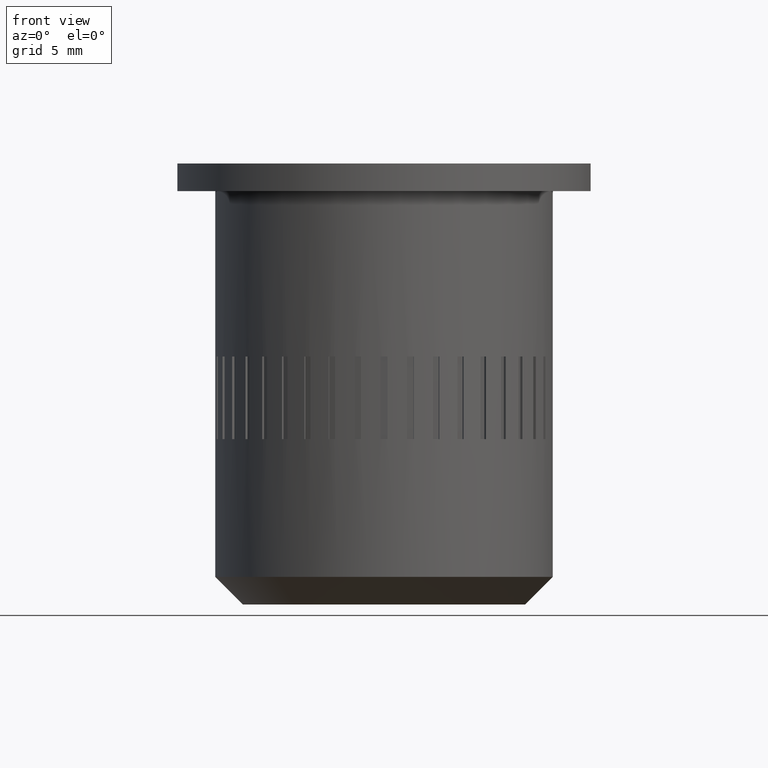
[diagram: clean part render]
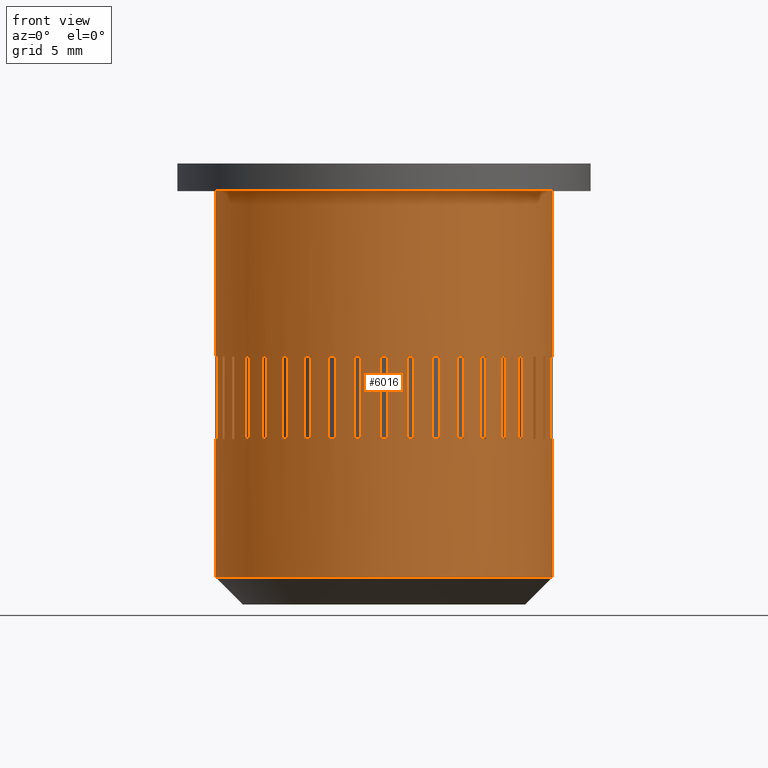
[diagram: same view with one face highlighted and labeled with its STEP entity id]
A machine part, front view. The second image highlights one B-rep face of the part: STEP entity #6016.
In plain terms, the highlighted cylindrical surface (partial cylindrical patch) has radius 12.25 mm, axis along (-0, -0, -1).
Its self-contained STEP definition (entity closure, byte-faithful):
#4 = EDGE_LOOP ( 'NONE', ( #2916, #2919, #2918, #2920 ) ) ;
#15 = EDGE_CURVE ( 'NONE', #330, #332, #5220, .T. ) ;
#28 = VECTOR ( 'NONE', #1402, 1000.000000000000000 ) ;
#56 = CIRCLE ( 'NONE', #2780, 12.25000000000000200 ) ;
#60 = LINE ( 'NONE', #1582, #61 ) ;
#61 = VECTOR ( 'NONE', #1583, 1000.000000000000000 ) ;
#65 = CIRCLE ( 'NONE', #2781, 12.25000000000000200 ) ;
#120 = EDGE_LOOP ( 'NONE', ( #3512, #3513, #3514, #3515 ) ) ;
#121 = EDGE_LOOP ( 'NONE', ( #3517, #3528, #3619, #3499 ) ) ;
#124 = VERTEX_POINT ( 'NONE', #5444 ) ;
#130 = VERTEX_POINT ( 'NONE', #5406 ) ;
#133 = VERTEX_POINT ( 'NONE', #5410 ) ;
#135 = VERTEX_POINT ( 'NONE', #2903 ) ;
#138 = VERTEX_POINT ( 'NONE', #2902 ) ;
#139 = VERTEX_POINT ( 'NONE', #2906 ) ;
#142 = VERTEX_POINT ( 'NONE', #2912 ) ;
#143 = VERTEX_POINT ( 'NONE', #2900 ) ;
#144 = VERTEX_POINT ( 'NONE', #2905 ) ;
#145 = VERTEX_POINT ( 'NONE', #2908 ) ;
#146 = VERTEX_POINT ( 'NONE', #2911 ) ;
#147 = VERTEX_POINT ( 'NONE', #2910 ) ;
#149 = VERTEX_POINT ( 'NONE', #2898 ) ;
#150 = VERTEX_POINT ( 'NONE', #2869 ) ;
#151 = VERTEX_POINT ( 'NONE', #2870 ) ;
#152 = VERTEX_POINT ( 'NONE', #2899 ) ;
#153 = VERTEX_POINT ( 'NONE', #2871 ) ;
#154 = VERTEX_POINT ( 'NONE', #2873 ) ;
#155 = VERTEX_POINT ( 'NONE', #2880 ) ;
#156 = VERTEX_POINT ( 'NONE', #2879 ) ;
#157 = VERTEX_POINT ( 'NONE', #2874 ) ;
#158 = VERTEX_POINT ( 'NONE', #2867 ) ;
#159 = VERTEX_POINT ( 'NONE', #2866 ) ;
#160 = VERTEX_POINT ( 'NONE', #2877 ) ;
#162 = VERTEX_POINT ( 'NONE', #2875 ) ;
#163 = VERTEX_POINT ( 'NONE', #2876 ) ;
#164 = VERTEX_POINT ( 'NONE', #2872 ) ;
#165 = VERTEX_POINT ( 'NONE', #2881 ) ;
#166 = VERTEX_POINT ( 'NONE', #2878 ) ;
#167 = VERTEX_POINT ( 'NONE', #2883 ) ;
#168 = VERTEX_POINT ( 'NONE', #2882 ) ;
#169 = VERTEX_POINT ( 'NONE', #2885 ) ;
#170 = VERTEX_POINT ( 'NONE', #2884 ) ;
#171 = VERTEX_POINT ( 'NONE', #2887 ) ;
#172 = VERTEX_POINT ( 'NONE', #2886 ) ;
#173 = VERTEX_POINT ( 'NONE', #2889 ) ;
#174 = VERTEX_POINT ( 'NONE', #2888 ) ;
#175 = VERTEX_POINT ( 'NONE', #2891 ) ;
#177 = VERTEX_POINT ( 'NONE', #2893 ) ;
#188 = VERTEX_POINT ( 'NONE', #2279 ) ;
#190 = VERTEX_POINT ( 'NONE', #2280 ) ;
#215 = VERTEX_POINT ( 'NONE', #2316 ) ;
#216 = VERTEX_POINT ( 'NONE', #2308 ) ;
#217 = VERTEX_POINT ( 'NONE', #2313 ) ;
#219 = VERTEX_POINT ( 'NONE', #2291 ) ;
#221 = VERTEX_POINT ( 'NONE', #2306 ) ;
#223 = VERTEX_POINT ( 'NONE', #2288 ) ;
#260 = VERTEX_POINT ( 'NONE', #1240 ) ;
#267 = VERTEX_POINT ( 'NONE', #1208 ) ;
#270 = VERTEX_POINT ( 'NONE', #1230 ) ;
#272 = VERTEX_POINT ( 'NONE', #5647 ) ;
#275 = VERTEX_POINT ( 'NONE', #5652 ) ;
#277 = VERTEX_POINT ( 'NONE', #5642 ) ;
#279 = VERTEX_POINT ( 'NONE', #5661 ) ;
#280 = VERTEX_POINT ( 'NONE', #5660 ) ;
#286 = VERTEX_POINT ( 'NONE', #5674 ) ;
#291 = VERTEX_POINT ( 'NONE', #5663 ) ;
#295 = VERTEX_POINT ( 'NONE', #5668 ) ;
#300 = VERTEX_POINT ( 'NONE', #5666 ) ;
#302 = VERTEX_POINT ( 'NONE', #5656 ) ;
#314 = VERTEX_POINT ( 'NONE', #2960 ) ;
#328 = VERTEX_POINT ( 'NONE', #2970 ) ;
#330 = VERTEX_POINT ( 'NONE', #2969 ) ;
#332 = VERTEX_POINT ( 'NONE', #1361 ) ;
#333 = VERTEX_POINT ( 'NONE', #1360 ) ;
#335 = VERTEX_POINT ( 'NONE', #1351 ) ;
#337 = VERTEX_POINT ( 'NONE', #1349 ) ;
#342 = VERTEX_POINT ( 'NONE', #1348 ) ;
#345 = VERTEX_POINT ( 'NONE', #1343 ) ;
#346 = VERTEX_POINT ( 'NONE', #1354 ) ;
#351 = VERTEX_POINT ( 'NONE', #1345 ) ;
#352 = VERTEX_POINT ( 'NONE', #2948 ) ;
#353 = VERTEX_POINT ( 'NONE', #2947 ) ;
#354 = VERTEX_POINT ( 'NONE', #2946 ) ;
#358 = VERTEX_POINT ( 'NONE', #2937 ) ;
#360 = VERTEX_POINT ( 'NONE', #2936 ) ;
#362 = VERTEX_POINT ( 'NONE', #2935 ) ;
#369 = VERTEX_POINT ( 'NONE', #1061 ) ;
#371 = VERTEX_POINT ( 'NONE', #1063 ) ;
#373 = VERTEX_POINT ( 'NONE', #1065 ) ;
#381 = VERTEX_POINT ( 'NONE', #1073 ) ;
#383 = VERTEX_POINT ( 'NONE', #1075 ) ;
#386 = VERTEX_POINT ( 'NONE', #1078 ) ;
#388 = VERTEX_POINT ( 'NONE', #1080 ) ;
#389 = VERTEX_POINT ( 'NONE', #1081 ) ;
#392 = VERTEX_POINT ( 'NONE', #1084 ) ;
#396 = VERTEX_POINT ( 'NONE', #1088 ) ;
#398 = VERTEX_POINT ( 'NONE', #1090 ) ;
#412 = EDGE_LOOP ( 'NONE', ( #3623, #2924, #3641, #3635 ) ) ;
#413 = EDGE_LOOP ( 'NONE', ( #3639, #3651, #3649, #3655 ) ) ;
#440 = CARTESIAN_POINT ( 'NONE',  ( 8.837030733141098400, -8.483477342547672600, 12.00000000000000200 ) ) ;
#441 = DIRECTION ( 'NONE',  ( -0.0000000000000000000, -0.0000000000000000000, 1.000000000000000000 ) ) ;
#446 = CARTESIAN_POINT ( 'NONE',  ( -5.782976993212170800, -10.79905908382664300, 12.00000000000000200 ) ) ;
#447 = DIRECTION ( 'NONE',  ( -0.0000000000000000000, -0.0000000000000000000, 1.000000000000000000 ) ) ;
#452 = CARTESIAN_POINT ( 'NONE',  ( 12.13577091303171700, -1.669001002520183800, 12.00000000000000200 ) ) ;
#453 = DIRECTION ( 'NONE',  ( -0.0000000000000000000, -0.0000000000000000000, 1.000000000000000000 ) ) ;
#456 = CARTESIAN_POINT ( 'NONE',  ( 0.0000000000000000000, 0.0000000000000000000, 12.00000000000000200 ) ) ;
#457 = DIRECTION ( 'NONE',  ( 0.0000000000000000000, 0.0000000000000000000, 1.000000000000000000 ) ) ;
#458 = DIRECTION ( 'NONE',  ( -0.4539904997395510800, 0.8910065241883656800, 0.0000000000000000000 ) ) ;
#487 = CARTESIAN_POINT ( 'NONE',  ( -12.25000000000000000, 0.0000000000000000000, 30.00000000000000000 ) ) ;
#488 = DIRECTION ( 'NONE',  ( -0.0000000000000000000, -0.0000000000000000000, -1.000000000000000000 ) ) ;
#500 = CARTESIAN_POINT ( 'NONE',  ( -6.996615483654383500, -10.05534046036670900, 12.00000000000000200 ) ) ;
#501 = DIRECTION ( 'NONE',  ( -0.0000000000000000000, -0.0000000000000000000, 1.000000000000000000 ) ) ;
#502 = CARTESIAN_POINT ( 'NONE',  ( 0.2500000000000863200, -12.24744871391588900, 12.00000000000000200 ) ) ;
#503 = DIRECTION ( 'NONE',  ( -0.0000000000000000000, -0.0000000000000000000, 1.000000000000000000 ) ) ;
#506 = CARTESIAN_POINT ( 'NONE',  ( 0.0000000000000000000, 0.0000000000000000000, 12.00000000000000200 ) ) ;
#507 = DIRECTION ( 'NONE',  ( 0.0000000000000000000, 0.0000000000000000000, 1.000000000000000000 ) ) ;
#508 = DIRECTION ( 'NONE',  ( -0.3090169943749382900, -0.9510565162951565300, 0.0000000000000000000 ) ) ;
#517 = CARTESIAN_POINT ( 'NONE',  ( -4.022433919409316200, -11.57076165876669500, 12.00000000000000200 ) ) ;
#518 = DIRECTION ( 'NONE',  ( -0.0000000000000000000, -0.0000000000000000000, 1.000000000000000000 ) ) ;
#529 = CARTESIAN_POINT ( 'NONE',  ( 0.0000000000000000000, 0.0000000000000000000, 18.00000000000000400 ) ) ;
#530 = DIRECTION ( 'NONE',  ( 0.0000000000000000000, 0.0000000000000000000, 1.000000000000000000 ) ) ;
#531 = DIRECTION ( 'NONE',  ( -0.5877852522924652500, -0.8090169943749530000, 0.0000000000000000000 ) ) ;
#535 = CARTESIAN_POINT ( 'NONE',  ( 0.0000000000000000000, 0.0000000000000000000, 18.00000000000000400 ) ) ;
#536 = DIRECTION ( 'NONE',  ( 0.0000000000000000000, 0.0000000000000000000, 1.000000000000000000 ) ) ;
#537 = DIRECTION ( 'NONE',  ( -3.491481338843133700E-015, 1.000000000000000000, 0.0000000000000000000 ) ) ;
#540 = CARTESIAN_POINT ( 'NONE',  ( -3.546905661261738000, -11.72527015595416500, 12.00000000000000200 ) ) ;
#541 = DIRECTION ( 'NONE',  ( -0.0000000000000000000, -0.0000000000000000000, 1.000000000000000000 ) ) ;
#556 = EDGE_LOOP ( 'NONE', ( #4003, #4004, #4036, #3997 ) ) ;
#557 = EDGE_LOOP ( 'NONE', ( #4050, #4047, #4045, #4046 ) ) ;
#558 = EDGE_LOOP ( 'NONE', ( #4051, #4052, #4049, #4048 ) ) ;
#559 = EDGE_LOOP ( 'NONE', ( #4056, #4054, #4055, #4053 ) ) ;
#805 = CARTESIAN_POINT ( 'NONE',  ( 0.0000000000000000000, 0.0000000000000000000, 30.00000000000000000 ) ) ;
#806 = DIRECTION ( 'NONE',  ( -0.0000000000000000000, -0.0000000000000000000, -1.000000000000000000 ) ) ;
#807 = DIRECTION ( 'NONE',  ( -1.000000000000000000, 0.0000000000000000000, 0.0000000000000000000 ) ) ;
#893 = EDGE_CURVE ( 'NONE', #272, #342, #5233, .T. ) ;
#910 = EDGE_CURVE ( 'NONE', #157, #156, #5265, .T. ) ;
#927 = EDGE_CURVE ( 'NONE', #398, #396, #5289, .T. ) ;
#928 = EDGE_CURVE ( 'NONE', #260, #354, #5288, .T. ) ;
#929 = EDGE_CURVE ( 'NONE', #383, #388, #4829, .T. ) ;
#932 = EDGE_CURVE ( 'NONE', #163, #223, #4832, .T. ) ;
#934 = EDGE_LOOP ( 'NONE', ( #3633, #4006, #3999, #4057 ) ) ;
#938 = FACE_BOUND ( 'NONE', #2178, .T. ) ;
#939 = FACE_BOUND ( 'NONE', #934, .T. ) ;
#940 = FACE_BOUND ( 'NONE', #559, .T. ) ;
#941 = FACE_BOUND ( 'NONE', #558, .T. ) ;
#942 = FACE_BOUND ( 'NONE', #557, .T. ) ;
#943 = FACE_BOUND ( 'NONE', #2176, .T. ) ;
#944 = FACE_BOUND ( 'NONE', #556, .T. ) ;
#945 = CYLINDRICAL_SURFACE ( 'NONE', #3317, 12.25000000000000000 ) ;
#1061 = CARTESIAN_POINT ( 'NONE',  ( -0.2499999999999137100, -12.24744871391589200, 12.00000000000000200 ) ) ;
#1063 = CARTESIAN_POINT ( 'NONE',  ( 11.57076165876670800, -4.022433919409280600, 12.00000000000000200 ) ) ;
#1065 = CARTESIAN_POINT ( 'NONE',  ( 11.72527015595417800, -3.546905661261702000, 12.00000000000000200 ) ) ;
#1073 = CARTESIAN_POINT ( 'NONE',  ( -10.05534046036663300, -6.996615483654489200, 12.00000000000000200 ) ) ;
#1075 = CARTESIAN_POINT ( 'NONE',  ( 3.546905661261908500, -11.72527015595411500, 12.00000000000000200 ) ) ;
#1078 = CARTESIAN_POINT ( 'NONE',  ( 3.546905661261908500, -11.72527015595411500, 18.00000000000000400 ) ) ;
#1080 = CARTESIAN_POINT ( 'NONE',  ( 4.022433919409484000, -11.57076165876663900, 12.00000000000000200 ) ) ;
#1081 = CARTESIAN_POINT ( 'NONE',  ( -12.25000000000000000, 0.0000000000000000000, 12.00000000000000200 ) ) ;
#1084 = CARTESIAN_POINT ( 'NONE',  ( 4.022433919409483100, -11.57076165876663700, 18.00000000000000400 ) ) ;
#1088 = CARTESIAN_POINT ( 'NONE',  ( 10.05534046036673600, -6.996615483654343500, 12.00000000000000200 ) ) ;
#1090 = CARTESIAN_POINT ( 'NONE',  ( 9.761447834220502900, -7.401123980841820300, 12.00000000000000200 ) ) ;
#1102 = CARTESIAN_POINT ( 'NONE',  ( 0.0000000000000000000, 0.0000000000000000000, 12.00000000000000200 ) ) ;
#1103 = DIRECTION ( 'NONE',  ( 0.0000000000000000000, 0.0000000000000000000, 1.000000000000000000 ) ) ;
#1104 = DIRECTION ( 'NONE',  ( 1.047444401652940000E-014, -1.000000000000000000, 0.0000000000000000000 ) ) ;
#1138 = CARTESIAN_POINT ( 'NONE',  ( 0.0000000000000000000, 0.0000000000000000000, 12.00000000000000200 ) ) ;
#1139 = DIRECTION ( 'NONE',  ( 0.0000000000000000000, 0.0000000000000000000, 1.000000000000000000 ) ) ;
#1140 = DIRECTION ( 'NONE',  ( -0.3090169943749515600, 0.9510565162951522000, 0.0000000000000000000 ) ) ;
#1166 = CARTESIAN_POINT ( 'NONE',  ( 0.0000000000000000000, 0.0000000000000000000, 12.00000000000000200 ) ) ;
#1167 = DIRECTION ( 'NONE',  ( 0.0000000000000000000, 0.0000000000000000000, 1.000000000000000000 ) ) ;
#1168 = DIRECTION ( 'NONE',  ( -0.5877852522924652500, -0.8090169943749530000, 0.0000000000000000000 ) ) ;
#1169 = CARTESIAN_POINT ( 'NONE',  ( 12.25000000000000000, 1.500192328955507700E-015, 30.00000000000000000 ) ) ;
#1170 = DIRECTION ( 'NONE',  ( -0.0000000000000000000, -0.0000000000000000000, -1.000000000000000000 ) ) ;
#1171 = CARTESIAN_POINT ( 'NONE',  ( 0.0000000000000000000, 0.0000000000000000000, 12.00000000000000200 ) ) ;
#1172 = DIRECTION ( 'NONE',  ( 0.0000000000000000000, 0.0000000000000000000, 1.000000000000000000 ) ) ;
#1173 = DIRECTION ( 'NONE',  ( -0.9510565162951510900, -0.3090169943749548300, 0.0000000000000000000 ) ) ;
#1180 = CARTESIAN_POINT ( 'NONE',  ( 0.0000000000000000000, 0.0000000000000000000, 1.999999999999998200 ) ) ;
#1181 = DIRECTION ( 'NONE',  ( -0.0000000000000000000, -0.0000000000000000000, 1.000000000000000000 ) ) ;
#1182 = DIRECTION ( 'NONE',  ( 1.000000000000000000, 0.0000000000000000000, 0.0000000000000000000 ) ) ;
#1186 = CARTESIAN_POINT ( 'NONE',  ( 2.162845172817970500, -12.05755368051156600, 12.00000000000000200 ) ) ;
#1187 = DIRECTION ( 'NONE',  ( -0.0000000000000000000, -0.0000000000000000000, 1.000000000000000000 ) ) ;
#1188 = CARTESIAN_POINT ( 'NONE',  ( 0.0000000000000000000, 0.0000000000000000000, 12.00000000000000200 ) ) ;
#1189 = DIRECTION ( 'NONE',  ( 0.0000000000000000000, 0.0000000000000000000, 1.000000000000000000 ) ) ;
#1190 = DIRECTION ( 'NONE',  ( -0.1564344650402347500, 0.9876883405951371000, 0.0000000000000000000 ) ) ;
#1193 = CARTESIAN_POINT ( 'NONE',  ( 5.337473731118144800, -11.02605433369633700, 12.00000000000000200 ) ) ;
#1194 = DIRECTION ( 'NONE',  ( -0.0000000000000000000, -0.0000000000000000000, 1.000000000000000000 ) ) ;
#1195 = CARTESIAN_POINT ( 'NONE',  ( 0.0000000000000000000, 0.0000000000000000000, 18.00000000000000400 ) ) ;
#1196 = DIRECTION ( 'NONE',  ( 0.0000000000000000000, 0.0000000000000000000, 1.000000000000000000 ) ) ;
#1197 = DIRECTION ( 'NONE',  ( -0.7071067811865413600, -0.7071067811865536800, 0.0000000000000000000 ) ) ;
#1202 = CARTESIAN_POINT ( 'NONE',  ( 0.0000000000000000000, 0.0000000000000000000, 18.00000000000000400 ) ) ;
#1203 = DIRECTION ( 'NONE',  ( 0.0000000000000000000, 0.0000000000000000000, 1.000000000000000000 ) ) ;
#1204 = DIRECTION ( 'NONE',  ( -0.8910065241883641200, -0.4539904997395541300, 0.0000000000000000000 ) ) ;
#1208 = CARTESIAN_POINT ( 'NONE',  ( -12.25000000000000000, 0.0000000000000000000, 30.00000000000000000 ) ) ;
#1210 = CARTESIAN_POINT ( 'NONE',  ( 12.05755368051160800, -2.162845172817753800, 12.00000000000000200 ) ) ;
#1212 = DIRECTION ( 'NONE',  ( -0.0000000000000000000, -0.0000000000000000000, 1.000000000000000000 ) ) ;
#1230 = CARTESIAN_POINT ( 'NONE',  ( -12.24744871391588900, -0.2500000000000434700, 18.00000000000000400 ) ) ;
#1240 = CARTESIAN_POINT ( 'NONE',  ( 12.25000000000000000, 1.500192328955507700E-015, 30.00000000000000000 ) ) ;
#1262 = EDGE_LOOP ( 'NONE', ( #3504, #3505, #3617, #3621 ) ) ;
#1264 = EDGE_CURVE ( 'NONE', #145, #162, #4833, .T. ) ;
#1265 = EDGE_CURVE ( 'NONE', #168, #160, #4837, .T. ) ;
#1267 = EDGE_CURVE ( 'NONE', #190, #153, #4839, .T. ) ;
#1268 = EDGE_CURVE ( 'NONE', #149, #171, #4842, .T. ) ;
#1271 = EDGE_CURVE ( 'NONE', #153, #150, #4847, .T. ) ;
#1273 = EDGE_CURVE ( 'NONE', #174, #164, #4849, .T. ) ;
#1286 = EDGE_CURVE ( 'NONE', #142, #175, #4874, .T. ) ;
#1290 = EDGE_CURVE ( 'NONE', #215, #216, #4883, .T. ) ;
#1294 = EDGE_CURVE ( 'NONE', #170, #173, #4890, .T. ) ;
#1296 = EDGE_CURVE ( 'NONE', #156, #158, #4892, .T. ) ;
#1297 = EDGE_CURVE ( 'NONE', #138, #139, #4894, .T. ) ;
#1298 = EDGE_CURVE ( 'NONE', #177, #145, #4896, .T. ) ;
#1302 = EDGE_CURVE ( 'NONE', #190, #152, #4903, .T. ) ;
#1316 = EDGE_CURVE ( 'NONE', #188, #219, #4929, .T. ) ;
#1323 = EDGE_CURVE ( 'NONE', #215, #221, #4941, .T. ) ;
#1329 = EDGE_CURVE ( 'NONE', #168, #166, #4953, .T. ) ;
#1334 = EDGE_CURVE ( 'NONE', #216, #217, #4961, .T. ) ;
#1343 = CARTESIAN_POINT ( 'NONE',  ( -9.761447834220394500, -7.401123980841961500, 12.00000000000000200 ) ) ;
#1345 = CARTESIAN_POINT ( 'NONE',  ( -7.401123980841859400, -9.761447834220474500, 18.00000000000000400 ) ) ;
#1348 = CARTESIAN_POINT ( 'NONE',  ( 12.25000000000000000, 1.500192328955507700E-015, 12.00000000000000200 ) ) ;
#1349 = CARTESIAN_POINT ( 'NONE',  ( -4.022433919409316200, -11.57076165876669500, 18.00000000000000400 ) ) ;
#1351 = CARTESIAN_POINT ( 'NONE',  ( 6.996615483654530000, -10.05534046036660500, 12.00000000000000200 ) ) ;
#1354 = CARTESIAN_POINT ( 'NONE',  ( -0.2499999999999137100, -12.24744871391589200, 18.00000000000000400 ) ) ;
#1360 = CARTESIAN_POINT ( 'NONE',  ( 9.761447834220502900, -7.401123980841820300, 18.00000000000000400 ) ) ;
#1361 = CARTESIAN_POINT ( 'NONE',  ( 7.401123980842001500, -9.761447834220366100, 18.00000000000000400 ) ) ;
#1364 = EDGE_LOOP ( 'NONE', ( #3631, #3629, #3627, #3625 ) ) ;
#1384 = CARTESIAN_POINT ( 'NONE',  ( 0.0000000000000000000, 0.0000000000000000000, 18.00000000000000400 ) ) ;
#1385 = DIRECTION ( 'NONE',  ( 0.0000000000000000000, 0.0000000000000000000, 1.000000000000000000 ) ) ;
#1386 = DIRECTION ( 'NONE',  ( -0.4539904997395382000, -0.8910065241883722300, 0.0000000000000000000 ) ) ;
#1389 = CARTESIAN_POINT ( 'NONE',  ( 11.02605433369643400, -5.337473731117945900, 12.00000000000000200 ) ) ;
#1390 = DIRECTION ( 'NONE',  ( -0.0000000000000000000, -0.0000000000000000000, 1.000000000000000000 ) ) ;
#1391 = CARTESIAN_POINT ( 'NONE',  ( -11.02605433369635600, -5.337473731118106600, 12.00000000000000200 ) ) ;
#1392 = DIRECTION ( 'NONE',  ( -0.0000000000000000000, -0.0000000000000000000, 1.000000000000000000 ) ) ;
#1401 = CARTESIAN_POINT ( 'NONE',  ( -5.337473731117985000, -11.02605433369641500, 12.00000000000000200 ) ) ;
#1402 = DIRECTION ( 'NONE',  ( -0.0000000000000000000, -0.0000000000000000000, 1.000000000000000000 ) ) ;
#1429 = CARTESIAN_POINT ( 'NONE',  ( 0.0000000000000000000, 0.0000000000000000000, 18.00000000000000400 ) ) ;
#1430 = DIRECTION ( 'NONE',  ( 0.0000000000000000000, 0.0000000000000000000, 1.000000000000000000 ) ) ;
#1431 = DIRECTION ( 'NONE',  ( -0.9876883405951387700, 0.1564344650402244000, 0.0000000000000000000 ) ) ;
#1437 = CARTESIAN_POINT ( 'NONE',  ( 0.0000000000000000000, 0.0000000000000000000, 12.00000000000000200 ) ) ;
#1438 = DIRECTION ( 'NONE',  ( 0.0000000000000000000, 0.0000000000000000000, 1.000000000000000000 ) ) ;
#1439 = DIRECTION ( 'NONE',  ( -0.7071067811865413600, -0.7071067811865536800, 0.0000000000000000000 ) ) ;
#1442 = CARTESIAN_POINT ( 'NONE',  ( 1.669001002520402300, -12.13577091303168500, 12.00000000000000200 ) ) ;
#1443 = DIRECTION ( 'NONE',  ( -0.0000000000000000000, -0.0000000000000000000, 1.000000000000000000 ) ) ;
#1476 = CARTESIAN_POINT ( 'NONE',  ( 0.0000000000000000000, 0.0000000000000000000, 18.00000000000000400 ) ) ;
#1477 = DIRECTION ( 'NONE',  ( 0.0000000000000000000, 0.0000000000000000000, 1.000000000000000000 ) ) ;
#1478 = DIRECTION ( 'NONE',  ( -0.1564344650402347500, 0.9876883405951371000, 0.0000000000000000000 ) ) ;
#1515 = CARTESIAN_POINT ( 'NONE',  ( -12.05755368051157500, -2.162845172817928300, 12.00000000000000200 ) ) ;
#1516 = DIRECTION ( 'NONE',  ( -0.0000000000000000000, -0.0000000000000000000, 1.000000000000000000 ) ) ;
#1529 = CARTESIAN_POINT ( 'NONE',  ( 0.0000000000000000000, 0.0000000000000000000, 12.00000000000000200 ) ) ;
#1530 = DIRECTION ( 'NONE',  ( 0.0000000000000000000, 0.0000000000000000000, 1.000000000000000000 ) ) ;
#1531 = DIRECTION ( 'NONE',  ( -0.1564344650402205200, -0.9876883405951394400, 0.0000000000000000000 ) ) ;
#1541 = CARTESIAN_POINT ( 'NONE',  ( 0.0000000000000000000, 0.0000000000000000000, 12.00000000000000200 ) ) ;
#1542 = DIRECTION ( 'NONE',  ( 0.0000000000000000000, 0.0000000000000000000, 1.000000000000000000 ) ) ;
#1543 = DIRECTION ( 'NONE',  ( -0.9876883405951387700, 0.1564344650402244000, 0.0000000000000000000 ) ) ;
#1582 = CARTESIAN_POINT ( 'NONE',  ( -11.72527015595413100, -3.546905661261868100, 12.00000000000000200 ) ) ;
#1583 = DIRECTION ( 'NONE',  ( -0.0000000000000000000, -0.0000000000000000000, 1.000000000000000000 ) ) ;
#1586 = CARTESIAN_POINT ( 'NONE',  ( 0.0000000000000000000, 0.0000000000000000000, 18.00000000000000400 ) ) ;
#1587 = DIRECTION ( 'NONE',  ( 0.0000000000000000000, 0.0000000000000000000, 1.000000000000000000 ) ) ;
#1588 = DIRECTION ( 'NONE',  ( -0.1564344650402205200, -0.9876883405951394400, 0.0000000000000000000 ) ) ;
#2012 = CIRCLE ( 'NONE', #2776, 12.25000000000000200 ) ;
#2021 = CIRCLE ( 'NONE', #2778, 12.25000000000000200 ) ;
#2076 = CIRCLE ( 'NONE', #2779, 12.25000000000000200 ) ;
#2078 = LINE ( 'NONE', #1389, #2079 ) ;
#2079 = VECTOR ( 'NONE', #1390, 1000.000000000000000 ) ;
#2080 = LINE ( 'NONE', #1391, #2081 ) ;
#2081 = VECTOR ( 'NONE', #1392, 1000.000000000000000 ) ;
#2090 = LINE ( 'NONE', #1401, #28 ) ;
#2092 = LINE ( 'NONE', #6123, #2093 ) ;
#2093 = VECTOR ( 'NONE', #6124, 1000.000000000000000 ) ;
#2112 = CIRCLE ( 'NONE', #2772, 12.25000000000000000 ) ;
#2114 = LINE ( 'NONE', #1442, #2115 ) ;
#2115 = VECTOR ( 'NONE', #1443, 1000.000000000000000 ) ;
#2149 = CIRCLE ( 'NONE', #2773, 12.25000000000000000 ) ;
#2174 = EDGE_LOOP ( 'NONE', ( #3508, #3507, #3506, #4002, #4000, #3998, #3996, #3994, #3992, #3990, #3988, #3986 ) ) ;
#2175 = EDGE_LOOP ( 'NONE', ( #2922, #2921, #2923, #2929 ) ) ;
#2176 = EDGE_LOOP ( 'NONE', ( #4034, #4040, #4038, #4001 ) ) ;
#2177 = EDGE_LOOP ( 'NONE', ( #3984, #3509, #3510, #3511 ) ) ;
#2178 = EDGE_LOOP ( 'NONE', ( #2926, #3645, #3643, #2925 ) ) ;
#2190 = EDGE_CURVE ( 'NONE', #169, #171, #4713, .T. ) ;
#2193 = EDGE_CURVE ( 'NONE', #188, #147, #4719, .T. ) ;
#2196 = EDGE_CURVE ( 'NONE', #165, #167, #4725, .T. ) ;
#2198 = EDGE_CURVE ( 'NONE', #130, #144, #4730, .T. ) ;
#2212 = CARTESIAN_POINT ( 'NONE',  ( 5.782976993212327200, -10.79905908382656000, 12.00000000000000200 ) ) ;
#2213 = DIRECTION ( 'NONE',  ( -0.0000000000000000000, -0.0000000000000000000, 1.000000000000000000 ) ) ;
#2226 = CARTESIAN_POINT ( 'NONE',  ( 8.483477342547828900, -8.837030733140949200, 12.00000000000000200 ) ) ;
#2227 = DIRECTION ( 'NONE',  ( -0.0000000000000000000, -0.0000000000000000000, 1.000000000000000000 ) ) ;
#2259 = CARTESIAN_POINT ( 'NONE',  ( 10.79905908382666400, -5.782976993212132700, 12.00000000000000200 ) ) ;
#2260 = DIRECTION ( 'NONE',  ( -0.0000000000000000000, -0.0000000000000000000, 1.000000000000000000 ) ) ;
#2279 = CARTESIAN_POINT ( 'NONE',  ( -5.782976993212170800, -10.79905908382664300, 12.00000000000000200 ) ) ;
#2280 = CARTESIAN_POINT ( 'NONE',  ( 5.337473731118144800, -11.02605433369633700, 12.00000000000000200 ) ) ;
#2288 = CARTESIAN_POINT ( 'NONE',  ( 12.25000000000000000, 1.500192328955507700E-015, 1.999999999999998200 ) ) ;
#2291 = CARTESIAN_POINT ( 'NONE',  ( -5.337473731117985000, -11.02605433369641500, 12.00000000000000200 ) ) ;
#2306 = CARTESIAN_POINT ( 'NONE',  ( -8.837030733140979400, -8.483477342547795200, 18.00000000000000400 ) ) ;
#2308 = CARTESIAN_POINT ( 'NONE',  ( -8.483477342547702800, -8.837030733141068200, 12.00000000000000200 ) ) ;
#2313 = CARTESIAN_POINT ( 'NONE',  ( -8.483477342547702800, -8.837030733141068200, 18.00000000000000400 ) ) ;
#2316 = CARTESIAN_POINT ( 'NONE',  ( -8.837030733140979400, -8.483477342547795200, 12.00000000000000200 ) ) ;
#2402 = LINE ( 'NONE', #5751, #2404 ) ;
#2403 = CIRCLE ( 'NONE', #2745, 12.25000000000000000 ) ;
#2404 = VECTOR ( 'NONE', #5752, 1000.000000000000000 ) ;
#2408 = LINE ( 'NONE', #5761, #2410 ) ;
#2409 = CIRCLE ( 'NONE', #2747, 12.25000000000000200 ) ;
#2410 = VECTOR ( 'NONE', #5762, 1000.000000000000000 ) ;
#2411 = CIRCLE ( 'NONE', #2748, 12.25000000000000200 ) ;
#2413 = CIRCLE ( 'NONE', #2749, 12.25000000000000000 ) ;
#2415 = LINE ( 'NONE', #5771, #2416 ) ;
#2416 = VECTOR ( 'NONE', #5772, 1000.000000000000000 ) ;
#2419 = LINE ( 'NONE', #5775, #2420 ) ;
#2420 = VECTOR ( 'NONE', #5776, 1000.000000000000000 ) ;
#2421 = LINE ( 'NONE', #5780, #2423 ) ;
#2423 = VECTOR ( 'NONE', #5781, 1000.000000000000000 ) ;
#2424 = CIRCLE ( 'NONE', #2751, 12.25000000000000000 ) ;
#2425 = CIRCLE ( 'NONE', #2752, 12.25000000000000000 ) ;
#2427 = LINE ( 'NONE', #5794, #2429 ) ;
#2429 = VECTOR ( 'NONE', #5795, 1000.000000000000000 ) ;
#2430 = LINE ( 'NONE', #5796, #2431 ) ;
#2431 = VECTOR ( 'NONE', #5797, 1000.000000000000000 ) ;
#2432 = LINE ( 'NONE', #5801, #2434 ) ;
#2434 = VECTOR ( 'NONE', #5802, 1000.000000000000000 ) ;
#2435 = LINE ( 'NONE', #5806, #2437 ) ;
#2437 = VECTOR ( 'NONE', #5807, 1000.000000000000000 ) ;
#2572 = EDGE_CURVE ( 'NONE', #389, #163, #4749, .T. ) ;
#2577 = EDGE_CURVE ( 'NONE', #360, #295, #4756, .T. ) ;
#2578 = EDGE_CURVE ( 'NONE', #300, #286, #4759, .T. ) ;
#2580 = EDGE_CURVE ( 'NONE', #371, #373, #4764, .T. ) ;
#2584 = EDGE_CURVE ( 'NONE', #352, #337, #4767, .T. ) ;
#2589 = EDGE_CURVE ( 'NONE', #333, #328, #4776, .T. ) ;
#2591 = EDGE_CURVE ( 'NONE', #275, #270, #4779, .T. ) ;
#2593 = EDGE_CURVE ( 'NONE', #302, #358, #4781, .T. ) ;
#2602 = EDGE_CURVE ( 'NONE', #291, #360, #4795, .T. ) ;
#2606 = EDGE_CURVE ( 'NONE', #362, #353, #4800, .T. ) ;
#2609 = EDGE_CURVE ( 'NONE', #371, #362, #4804, .T. ) ;
#2611 = EDGE_CURVE ( 'NONE', #373, #353, #4806, .T. ) ;
#2613 = EDGE_CURVE ( 'NONE', #351, #295, #4811, .T. ) ;
#2617 = EDGE_CURVE ( 'NONE', #346, #286, #4817, .T. ) ;
#2618 = EDGE_CURVE ( 'NONE', #388, #392, #4816, .T. ) ;
#2619 = EDGE_CURVE ( 'NONE', #335, #330, #4820, .T. ) ;
#2620 = EDGE_CURVE ( 'NONE', #267, #275, #4819, .T. ) ;
#2622 = EDGE_CURVE ( 'NONE', #389, #277, #4823, .T. ) ;
#2623 = EDGE_CURVE ( 'NONE', #369, #300, #4824, .T. ) ;
#2626 = EDGE_CURVE ( 'NONE', #267, #260, #2403, .T. ) ;
#2627 = EDGE_CURVE ( 'NONE', #272, #279, #2402, .T. ) ;
#2630 = EDGE_CURVE ( 'NONE', #352, #302, #2409, .T. ) ;
#2631 = EDGE_CURVE ( 'NONE', #291, #351, #2408, .T. ) ;
#2632 = EDGE_CURVE ( 'NONE', #337, #358, #2411, .T. ) ;
#2633 = EDGE_CURVE ( 'NONE', #279, #354, #2413, .T. ) ;
#2635 = EDGE_CURVE ( 'NONE', #277, #270, #2415, .T. ) ;
#2637 = EDGE_CURVE ( 'NONE', #335, #314, #2419, .T. ) ;
#2639 = EDGE_CURVE ( 'NONE', #369, #346, #2421, .T. ) ;
#2640 = EDGE_CURVE ( 'NONE', #381, #345, #2424, .T. ) ;
#2641 = EDGE_CURVE ( 'NONE', #280, #154, #2425, .T. ) ;
#2644 = EDGE_CURVE ( 'NONE', #398, #333, #2427, .T. ) ;
#2645 = EDGE_CURVE ( 'NONE', #396, #328, #2430, .T. ) ;
#2647 = EDGE_CURVE ( 'NONE', #345, #154, #2432, .T. ) ;
#2649 = EDGE_CURVE ( 'NONE', #381, #280, #2435, .T. ) ;
#2688 = AXIS2_PLACEMENT_3D ( 'NONE', #1102, #1103, #1104 ) ;
#2690 = AXIS2_PLACEMENT_3D ( 'NONE', #1138, #1139, #1140 ) ;
#2692 = AXIS2_PLACEMENT_3D ( 'NONE', #1166, #1167, #1168 ) ;
#2693 = AXIS2_PLACEMENT_3D ( 'NONE', #1171, #1172, #1173 ) ;
#2696 = AXIS2_PLACEMENT_3D ( 'NONE', #1180, #1181, #1182 ) ;
#2698 = AXIS2_PLACEMENT_3D ( 'NONE', #1188, #1189, #1190 ) ;
#2699 = AXIS2_PLACEMENT_3D ( 'NONE', #1195, #1196, #1197 ) ;
#2700 = AXIS2_PLACEMENT_3D ( 'NONE', #1202, #1203, #1204 ) ;
#2702 = AXIS2_PLACEMENT_3D ( 'NONE', #5105, #5106, #5107 ) ;
#2703 = AXIS2_PLACEMENT_3D ( 'NONE', #5114, #5115, #5116 ) ;
#2704 = AXIS2_PLACEMENT_3D ( 'NONE', #5121, #5122, #5123 ) ;
#2705 = AXIS2_PLACEMENT_3D ( 'NONE', #5124, #5125, #5126 ) ;
#2706 = AXIS2_PLACEMENT_3D ( 'NONE', #5133, #5134, #5135 ) ;
#2707 = AXIS2_PLACEMENT_3D ( 'NONE', #5162, #5163, #5164 ) ;
#2710 = AXIS2_PLACEMENT_3D ( 'NONE', #456, #457, #458 ) ;
#2718 = AXIS2_PLACEMENT_3D ( 'NONE', #506, #507, #508 ) ;
#2723 = AXIS2_PLACEMENT_3D ( 'NONE', #529, #530, #531 ) ;
#2725 = AXIS2_PLACEMENT_3D ( 'NONE', #535, #536, #537 ) ;
#2730 = AXIS2_PLACEMENT_3D ( 'NONE', #5685, #5686, #5687 ) ;
#2733 = AXIS2_PLACEMENT_3D ( 'NONE', #5696, #5697, #5698 ) ;
#2737 = AXIS2_PLACEMENT_3D ( 'NONE', #5714, #5715, #5716 ) ;
#2739 = AXIS2_PLACEMENT_3D ( 'NONE', #5724, #5725, #5726 ) ;
#2740 = AXIS2_PLACEMENT_3D ( 'NONE', #5729, #5730, #5731 ) ;
#2742 = AXIS2_PLACEMENT_3D ( 'NONE', #5737, #5738, #5739 ) ;
#2743 = AXIS2_PLACEMENT_3D ( 'NONE', #5740, #5741, #5742 ) ;
#2745 = AXIS2_PLACEMENT_3D ( 'NONE', #5748, #5749, #5750 ) ;
#2747 = AXIS2_PLACEMENT_3D ( 'NONE', #5758, #5759, #5760 ) ;
#2748 = AXIS2_PLACEMENT_3D ( 'NONE', #5763, #5764, #5765 ) ;
#2749 = AXIS2_PLACEMENT_3D ( 'NONE', #5766, #5767, #5768 ) ;
#2751 = AXIS2_PLACEMENT_3D ( 'NONE', #5782, #5783, #5784 ) ;
#2752 = AXIS2_PLACEMENT_3D ( 'NONE', #5785, #5786, #5787 ) ;
#2765 = AXIS2_PLACEMENT_3D ( 'NONE', #6091, #6092, #6093 ) ;
#2766 = AXIS2_PLACEMENT_3D ( 'NONE', #6094, #6095, #6096 ) ;
#2772 = AXIS2_PLACEMENT_3D ( 'NONE', #1437, #1438, #1439 ) ;
#2773 = AXIS2_PLACEMENT_3D ( 'NONE', #1476, #1477, #1478 ) ;
#2776 = AXIS2_PLACEMENT_3D ( 'NONE', #1529, #1530, #1531 ) ;
#2778 = AXIS2_PLACEMENT_3D ( 'NONE', #1541, #1542, #1543 ) ;
#2779 = AXIS2_PLACEMENT_3D ( 'NONE', #1384, #1385, #1386 ) ;
#2780 = AXIS2_PLACEMENT_3D ( 'NONE', #1429, #1430, #1431 ) ;
#2781 = AXIS2_PLACEMENT_3D ( 'NONE', #1586, #1587, #1588 ) ;
#2866 = CARTESIAN_POINT ( 'NONE',  ( -11.72527015595413100, -3.546905661261868100, 18.00000000000000400 ) ) ;
#2867 = CARTESIAN_POINT ( 'NONE',  ( -11.57076165876665100, -4.022433919409442300, 18.00000000000000400 ) ) ;
#2869 = CARTESIAN_POINT ( 'NONE',  ( 5.782976993212327200, -10.79905908382656000, 18.00000000000000400 ) ) ;
#2870 = CARTESIAN_POINT ( 'NONE',  ( 8.483477342547828900, -8.837030733140949200, 12.00000000000000200 ) ) ;
#2871 = CARTESIAN_POINT ( 'NONE',  ( 5.337473731118144800, -11.02605433369633700, 18.00000000000000400 ) ) ;
#2872 = CARTESIAN_POINT ( 'NONE',  ( 12.05755368051160800, -2.162845172817753800, 18.00000000000000400 ) ) ;
#2873 = CARTESIAN_POINT ( 'NONE',  ( -9.761447834220394500, -7.401123980841961500, 18.00000000000000400 ) ) ;
#2874 = CARTESIAN_POINT ( 'NONE',  ( -11.72527015595413100, -3.546905661261868100, 12.00000000000000200 ) ) ;
#2875 = CARTESIAN_POINT ( 'NONE',  ( 2.162845172817970500, -12.05755368051156600, 18.00000000000000400 ) ) ;
#2876 = CARTESIAN_POINT ( 'NONE',  ( -12.25000000000000000, 0.0000000000000000000, 1.999999999999998200 ) ) ;
#2877 = CARTESIAN_POINT ( 'NONE',  ( -12.05755368051157500, -2.162845172817928300, 12.00000000000000200 ) ) ;
#2878 = CARTESIAN_POINT ( 'NONE',  ( -12.13577091303169000, -1.669001002520360100, 18.00000000000000400 ) ) ;
#2879 = CARTESIAN_POINT ( 'NONE',  ( -11.57076165876665500, -4.022433919409444100, 12.00000000000000200 ) ) ;
#2880 = CARTESIAN_POINT ( 'NONE',  ( -2.162845172817800900, -12.05755368051159800, 18.00000000000000400 ) ) ;
#2881 = CARTESIAN_POINT ( 'NONE',  ( 12.13577091303171700, -1.669001002520183800, 12.00000000000000200 ) ) ;
#2882 = CARTESIAN_POINT ( 'NONE',  ( -12.13577091303169000, -1.669001002520360100, 12.00000000000000200 ) ) ;
#2883 = CARTESIAN_POINT ( 'NONE',  ( 12.13577091303171500, -1.669001002520183600, 18.00000000000000400 ) ) ;
#2884 = CARTESIAN_POINT ( 'NONE',  ( 10.79905908382666400, -5.782976993212132700, 12.00000000000000200 ) ) ;
#2885 = CARTESIAN_POINT ( 'NONE',  ( 8.837030733141098400, -8.483477342547672600, 12.00000000000000200 ) ) ;
#2886 = CARTESIAN_POINT ( 'NONE',  ( 10.79905908382666400, -5.782976993212132700, 18.00000000000000400 ) ) ;
#2887 = CARTESIAN_POINT ( 'NONE',  ( 8.837030733141098400, -8.483477342547672600, 18.00000000000000400 ) ) ;
#2888 = CARTESIAN_POINT ( 'NONE',  ( 12.05755368051160800, -2.162845172817753800, 12.00000000000000200 ) ) ;
#2889 = CARTESIAN_POINT ( 'NONE',  ( 11.02605433369643400, -5.337473731117945900, 12.00000000000000200 ) ) ;
#2891 = CARTESIAN_POINT ( 'NONE',  ( -1.669001002520231300, -12.13577091303171000, 18.00000000000000400 ) ) ;
#2893 = CARTESIAN_POINT ( 'NONE',  ( 1.669001002520402300, -12.13577091303168500, 12.00000000000000200 ) ) ;
#2898 = CARTESIAN_POINT ( 'NONE',  ( 8.483477342547828900, -8.837030733140949200, 18.00000000000000400 ) ) ;
#2899 = CARTESIAN_POINT ( 'NONE',  ( 5.782976993212327200, -10.79905908382656000, 12.00000000000000200 ) ) ;
#2900 = CARTESIAN_POINT ( 'NONE',  ( -12.05755368051157500, -2.162845172817928300, 18.00000000000000400 ) ) ;
#2902 = CARTESIAN_POINT ( 'NONE',  ( -11.02605433369635600, -5.337473731118106600, 18.00000000000000400 ) ) ;
#2903 = CARTESIAN_POINT ( 'NONE',  ( 11.02605433369643300, -5.337473731117945000, 18.00000000000000400 ) ) ;
#2905 = CARTESIAN_POINT ( 'NONE',  ( -10.79905908382658100, -5.782976993212289900, 12.00000000000000200 ) ) ;
#2906 = CARTESIAN_POINT ( 'NONE',  ( -10.79905908382657900, -5.782976993212289000, 18.00000000000000400 ) ) ;
#2908 = CARTESIAN_POINT ( 'NONE',  ( 2.162845172817970500, -12.05755368051156600, 12.00000000000000200 ) ) ;
#2910 = CARTESIAN_POINT ( 'NONE',  ( -5.782976993212170800, -10.79905908382664300, 18.00000000000000400 ) ) ;
#2911 = CARTESIAN_POINT ( 'NONE',  ( -5.337473731117984100, -11.02605433369641300, 18.00000000000000400 ) ) ;
#2912 = CARTESIAN_POINT ( 'NONE',  ( -1.669001002520231300, -12.13577091303171000, 12.00000000000000200 ) ) ;
#2914 = ORIENTED_EDGE ( 'NONE', *, *, #5359, .T. ) ;
#2915 = ORIENTED_EDGE ( 'NONE', *, *, #1296, .F. ) ;
#2916 = ORIENTED_EDGE ( 'NONE', *, *, #1265, .F. ) ;
#2917 = ORIENTED_EDGE ( 'NONE', *, *, #6148, .T. ) ;
#2918 = ORIENTED_EDGE ( 'NONE', *, *, #4150, .T. ) ;
#2919 = ORIENTED_EDGE ( 'NONE', *, *, #1329, .T. ) ;
#2920 = ORIENTED_EDGE ( 'NONE', *, *, #5009, .F. ) ;
#2921 = ORIENTED_EDGE ( 'NONE', *, *, #5052, .T. ) ;
#2922 = ORIENTED_EDGE ( 'NONE', *, *, #2198, .F. ) ;
#2923 = ORIENTED_EDGE ( 'NONE', *, *, #1297, .T. ) ;
#2924 = ORIENTED_EDGE ( 'NONE', *, *, #2631, .T. ) ;
#2925 = ORIENTED_EDGE ( 'NONE', *, *, #5057, .F. ) ;
#2926 = ORIENTED_EDGE ( 'NONE', *, *, #1316, .F. ) ;
#2927 = ORIENTED_EDGE ( 'NONE', *, *, #1290, .F. ) ;
#2928 = ORIENTED_EDGE ( 'NONE', *, *, #6154, .T. ) ;
#2929 = ORIENTED_EDGE ( 'NONE', *, *, #6157, .F. ) ;
#2935 = CARTESIAN_POINT ( 'NONE',  ( 11.57076165876670800, -4.022433919409280600, 18.00000000000000400 ) ) ;
#2936 = CARTESIAN_POINT ( 'NONE',  ( -6.996615483654383500, -10.05534046036670900, 12.00000000000000200 ) ) ;
#2937 = CARTESIAN_POINT ( 'NONE',  ( -3.546905661261738000, -11.72527015595416500, 18.00000000000000400 ) ) ;
#2946 = CARTESIAN_POINT ( 'NONE',  ( 12.25000000000000000, 1.500192328955507700E-015, 18.00000000000000400 ) ) ;
#2947 = CARTESIAN_POINT ( 'NONE',  ( 11.72527015595417800, -3.546905661261702000, 18.00000000000000400 ) ) ;
#2948 = CARTESIAN_POINT ( 'NONE',  ( -4.022433919409316200, -11.57076165876669500, 12.00000000000000200 ) ) ;
#2960 = CARTESIAN_POINT ( 'NONE',  ( 6.996615483654530000, -10.05534046036660500, 18.00000000000000400 ) ) ;
#2969 = CARTESIAN_POINT ( 'NONE',  ( 7.401123980842001500, -9.761447834220366100, 12.00000000000000200 ) ) ;
#2970 = CARTESIAN_POINT ( 'NONE',  ( 10.05534046036673600, -6.996615483654343500, 18.00000000000000400 ) ) ;
#2972 = EDGE_CURVE ( 'NONE', #383, #386, #6212, .T. ) ;
#2974 = EDGE_CURVE ( 'NONE', #386, #392, #6217, .T. ) ;
#2975 = EDGE_CURVE ( 'NONE', #314, #332, #6218, .T. ) ;
#3068 = CIRCLE ( 'NONE', #3344, 12.25000000000000400 ) ;
#3073 = CIRCLE ( 'NONE', #3345, 12.25000000000000200 ) ;
#3078 = CIRCLE ( 'NONE', #3346, 12.25000000000000200 ) ;
#3082 = LINE ( 'NONE', #3445, #3083 ) ;
#3083 = VECTOR ( 'NONE', #3446, 1000.000000000000000 ) ;
#3089 = CIRCLE ( 'NONE', #3347, 12.25000000000000000 ) ;
#3093 = LINE ( 'NONE', #3458, #3094 ) ;
#3094 = VECTOR ( 'NONE', #3459, 1000.000000000000000 ) ;
#3184 = FACE_OUTER_BOUND ( 'NONE', #2174, .T. ) ;
#3185 = FACE_BOUND ( 'NONE', #2177, .T. ) ;
#3186 = FACE_BOUND ( 'NONE', #120, .T. ) ;
#3187 = FACE_BOUND ( 'NONE', #121, .T. ) ;
#3188 = FACE_BOUND ( 'NONE', #3497, .T. ) ;
#3189 = FACE_BOUND ( 'NONE', #1262, .T. ) ;
#3190 = FACE_BOUND ( 'NONE', #1364, .T. ) ;
#3191 = FACE_BOUND ( 'NONE', #412, .T. ) ;
#3192 = FACE_BOUND ( 'NONE', #413, .T. ) ;
#3193 = FACE_BOUND ( 'NONE', #3496, .T. ) ;
#3194 = FACE_BOUND ( 'NONE', #4, .T. ) ;
#3195 = FACE_BOUND ( 'NONE', #2175, .T. ) ;
#3196 = FACE_BOUND ( 'NONE', #6074, .T. ) ;
#3317 = AXIS2_PLACEMENT_3D ( 'NONE', #805, #806, #807 ) ;
#3344 = AXIS2_PLACEMENT_3D ( 'NONE', #3424, #3425, #3426 ) ;
#3345 = AXIS2_PLACEMENT_3D ( 'NONE', #3431, #3432, #3433 ) ;
#3346 = AXIS2_PLACEMENT_3D ( 'NONE', #3438, #3439, #3440 ) ;
#3347 = AXIS2_PLACEMENT_3D ( 'NONE', #3451, #3452, #3453 ) ;
#3424 = CARTESIAN_POINT ( 'NONE',  ( 0.0000000000000000000, 0.0000000000000000000, 18.00000000000000400 ) ) ;
#3425 = DIRECTION ( 'NONE',  ( 0.0000000000000000000, 0.0000000000000000000, 1.000000000000000000 ) ) ;
#3426 = DIRECTION ( 'NONE',  ( -0.3090169943749515600, 0.9510565162951522000, 0.0000000000000000000 ) ) ;
#3431 = CARTESIAN_POINT ( 'NONE',  ( 0.0000000000000000000, 0.0000000000000000000, 18.00000000000000400 ) ) ;
#3432 = DIRECTION ( 'NONE',  ( 0.0000000000000000000, 0.0000000000000000000, 1.000000000000000000 ) ) ;
#3433 = DIRECTION ( 'NONE',  ( -0.8910065241883705600, 0.4539904997395413100, 0.0000000000000000000 ) ) ;
#3438 = CARTESIAN_POINT ( 'NONE',  ( 0.0000000000000000000, 0.0000000000000000000, 18.00000000000000400 ) ) ;
#3439 = DIRECTION ( 'NONE',  ( 0.0000000000000000000, 0.0000000000000000000, 1.000000000000000000 ) ) ;
#3440 = DIRECTION ( 'NONE',  ( -0.7071067811865511300, 0.7071067811865438000, 0.0000000000000000000 ) ) ;
#3445 = CARTESIAN_POINT ( 'NONE',  ( -10.79905908382658100, -5.782976993212289900, 12.00000000000000200 ) ) ;
#3446 = DIRECTION ( 'NONE',  ( -0.0000000000000000000, -0.0000000000000000000, 1.000000000000000000 ) ) ;
#3451 = CARTESIAN_POINT ( 'NONE',  ( 0.0000000000000000000, 0.0000000000000000000, 18.00000000000000400 ) ) ;
#3452 = DIRECTION ( 'NONE',  ( 0.0000000000000000000, 0.0000000000000000000, 1.000000000000000000 ) ) ;
#3453 = DIRECTION ( 'NONE',  ( -0.9876883405951365500, -0.1564344650402382000, 0.0000000000000000000 ) ) ;
#3458 = CARTESIAN_POINT ( 'NONE',  ( -2.162845172817800900, -12.05755368051159800, 12.00000000000000200 ) ) ;
#3459 = DIRECTION ( 'NONE',  ( -0.0000000000000000000, -0.0000000000000000000, 1.000000000000000000 ) ) ;
#3487 = EDGE_CURVE ( 'NONE', #342, #223, #2092, .T. ) ;
#3496 = EDGE_LOOP ( 'NONE', ( #3653, #2914, #2917, #2915 ) ) ;
#3497 = EDGE_LOOP ( 'NONE', ( #3500, #3501, #3502, #3503 ) ) ;
#3499 = ORIENTED_EDGE ( 'NONE', *, *, #15, .F. ) ;
#3500 = ORIENTED_EDGE ( 'NONE', *, *, #929, .F. ) ;
#3501 = ORIENTED_EDGE ( 'NONE', *, *, #2972, .T. ) ;
#3502 = ORIENTED_EDGE ( 'NONE', *, *, #2974, .T. ) ;
#3503 = ORIENTED_EDGE ( 'NONE', *, *, #2618, .F. ) ;
#3504 = ORIENTED_EDGE ( 'NONE', *, *, #2623, .F. ) ;
#3505 = ORIENTED_EDGE ( 'NONE', *, *, #2639, .T. ) ;
#3506 = ORIENTED_EDGE ( 'NONE', *, *, #2620, .T. ) ;
#3507 = ORIENTED_EDGE ( 'NONE', *, *, #2626, .F. ) ;
#3508 = ORIENTED_EDGE ( 'NONE', *, *, #928, .F. ) ;
#3509 = ORIENTED_EDGE ( 'NONE', *, *, #2609, .T. ) ;
#3510 = ORIENTED_EDGE ( 'NONE', *, *, #2606, .T. ) ;
#3511 = ORIENTED_EDGE ( 'NONE', *, *, #2611, .F. ) ;
#3512 = ORIENTED_EDGE ( 'NONE', *, *, #927, .F. ) ;
#3513 = ORIENTED_EDGE ( 'NONE', *, *, #2644, .T. ) ;
#3514 = ORIENTED_EDGE ( 'NONE', *, *, #2589, .T. ) ;
#3515 = ORIENTED_EDGE ( 'NONE', *, *, #2645, .F. ) ;
#3517 = ORIENTED_EDGE ( 'NONE', *, *, #2619, .F. ) ;
#3528 = ORIENTED_EDGE ( 'NONE', *, *, #2637, .T. ) ;
#3617 = ORIENTED_EDGE ( 'NONE', *, *, #2617, .T. ) ;
#3619 = ORIENTED_EDGE ( 'NONE', *, *, #2975, .T. ) ;
#3621 = ORIENTED_EDGE ( 'NONE', *, *, #2578, .F. ) ;
#3623 = ORIENTED_EDGE ( 'NONE', *, *, #2602, .F. ) ;
#3625 = ORIENTED_EDGE ( 'NONE', *, *, #2593, .F. ) ;
#3627 = ORIENTED_EDGE ( 'NONE', *, *, #2632, .T. ) ;
#3629 = ORIENTED_EDGE ( 'NONE', *, *, #2584, .T. ) ;
#3631 = ORIENTED_EDGE ( 'NONE', *, *, #2630, .F. ) ;
#3633 = ORIENTED_EDGE ( 'NONE', *, *, #5021, .F. ) ;
#3635 = ORIENTED_EDGE ( 'NONE', *, *, #2577, .F. ) ;
#3637 = ORIENTED_EDGE ( 'NONE', *, *, #1323, .T. ) ;
#3639 = ORIENTED_EDGE ( 'NONE', *, *, #2640, .F. ) ;
#3641 = ORIENTED_EDGE ( 'NONE', *, *, #2613, .T. ) ;
#3643 = ORIENTED_EDGE ( 'NONE', *, *, #6151, .T. ) ;
#3645 = ORIENTED_EDGE ( 'NONE', *, *, #2193, .T. ) ;
#3647 = ORIENTED_EDGE ( 'NONE', *, *, #1334, .F. ) ;
#3649 = ORIENTED_EDGE ( 'NONE', *, *, #2641, .T. ) ;
#3651 = ORIENTED_EDGE ( 'NONE', *, *, #2649, .T. ) ;
#3653 = ORIENTED_EDGE ( 'NONE', *, *, #910, .F. ) ;
#3655 = ORIENTED_EDGE ( 'NONE', *, *, #2647, .F. ) ;
#3705 = EDGE_CURVE ( 'NONE', #151, #169, #2112, .T. ) ;
#3709 = EDGE_CURVE ( 'NONE', #177, #133, #2114, .T. ) ;
#3984 = ORIENTED_EDGE ( 'NONE', *, *, #2580, .F. ) ;
#3986 = ORIENTED_EDGE ( 'NONE', *, *, #2633, .T. ) ;
#3988 = ORIENTED_EDGE ( 'NONE', *, *, #2627, .T. ) ;
#3990 = ORIENTED_EDGE ( 'NONE', *, *, #893, .F. ) ;
#3992 = ORIENTED_EDGE ( 'NONE', *, *, #3487, .F. ) ;
#3994 = ORIENTED_EDGE ( 'NONE', *, *, #932, .T. ) ;
#3996 = ORIENTED_EDGE ( 'NONE', *, *, #2572, .T. ) ;
#3997 = ORIENTED_EDGE ( 'NONE', *, *, #2196, .F. ) ;
#3998 = ORIENTED_EDGE ( 'NONE', *, *, #2622, .F. ) ;
#3999 = ORIENTED_EDGE ( 'NONE', *, *, #5071, .T. ) ;
#4000 = ORIENTED_EDGE ( 'NONE', *, *, #2635, .F. ) ;
#4001 = ORIENTED_EDGE ( 'NONE', *, *, #5051, .F. ) ;
#4002 = ORIENTED_EDGE ( 'NONE', *, *, #2591, .T. ) ;
#4003 = ORIENTED_EDGE ( 'NONE', *, *, #5016, .F. ) ;
#4004 = ORIENTED_EDGE ( 'NONE', *, *, #1273, .T. ) ;
#4006 = ORIENTED_EDGE ( 'NONE', *, *, #6163, .T. ) ;
#4034 = ORIENTED_EDGE ( 'NONE', *, *, #1294, .F. ) ;
#4036 = ORIENTED_EDGE ( 'NONE', *, *, #5361, .T. ) ;
#4038 = ORIENTED_EDGE ( 'NONE', *, *, #5049, .T. ) ;
#4040 = ORIENTED_EDGE ( 'NONE', *, *, #5001, .T. ) ;
#4045 = ORIENTED_EDGE ( 'NONE', *, *, #1268, .T. ) ;
#4046 = ORIENTED_EDGE ( 'NONE', *, *, #2190, .F. ) ;
#4047 = ORIENTED_EDGE ( 'NONE', *, *, #4985, .T. ) ;
#4048 = ORIENTED_EDGE ( 'NONE', *, *, #4190, .F. ) ;
#4049 = ORIENTED_EDGE ( 'NONE', *, *, #1271, .T. ) ;
#4050 = ORIENTED_EDGE ( 'NONE', *, *, #3705, .F. ) ;
#4051 = ORIENTED_EDGE ( 'NONE', *, *, #1302, .F. ) ;
#4052 = ORIENTED_EDGE ( 'NONE', *, *, #1267, .T. ) ;
#4053 = ORIENTED_EDGE ( 'NONE', *, *, #1264, .F. ) ;
#4054 = ORIENTED_EDGE ( 'NONE', *, *, #3709, .T. ) ;
#4055 = ORIENTED_EDGE ( 'NONE', *, *, #6160, .T. ) ;
#4056 = ORIENTED_EDGE ( 'NONE', *, *, #1298, .F. ) ;
#4057 = ORIENTED_EDGE ( 'NONE', *, *, #1286, .F. ) ;
#4150 = EDGE_CURVE ( 'NONE', #166, #143, #2149, .T. ) ;
#4190 = EDGE_CURVE ( 'NONE', #152, #150, #5463, .T. ) ;
#4713 = LINE ( 'NONE', #440, #4714 ) ;
#4714 = VECTOR ( 'NONE', #441, 1000.000000000000000 ) ;
#4719 = LINE ( 'NONE', #446, #4720 ) ;
#4720 = VECTOR ( 'NONE', #447, 1000.000000000000000 ) ;
#4725 = LINE ( 'NONE', #452, #4726 ) ;
#4726 = VECTOR ( 'NONE', #453, 1000.000000000000000 ) ;
#4730 = CIRCLE ( 'NONE', #2710, 12.25000000000000000 ) ;
#4749 = LINE ( 'NONE', #487, #4751 ) ;
#4751 = VECTOR ( 'NONE', #488, 1000.000000000000000 ) ;
#4756 = LINE ( 'NONE', #500, #4758 ) ;
#4758 = VECTOR ( 'NONE', #501, 1000.000000000000000 ) ;
#4759 = LINE ( 'NONE', #502, #4760 ) ;
#4760 = VECTOR ( 'NONE', #503, 1000.000000000000000 ) ;
#4764 = CIRCLE ( 'NONE', #2718, 12.25000000000000000 ) ;
#4767 = LINE ( 'NONE', #517, #4769 ) ;
#4769 = VECTOR ( 'NONE', #518, 1000.000000000000000 ) ;
#4776 = CIRCLE ( 'NONE', #2723, 12.25000000000000200 ) ;
#4779 = CIRCLE ( 'NONE', #2725, 12.25000000000000000 ) ;
#4781 = LINE ( 'NONE', #540, #4782 ) ;
#4782 = VECTOR ( 'NONE', #541, 1000.000000000000000 ) ;
#4795 = CIRCLE ( 'NONE', #2730, 12.25000000000000200 ) ;
#4800 = CIRCLE ( 'NONE', #2733, 12.25000000000000000 ) ;
#4804 = LINE ( 'NONE', #5704, #4805 ) ;
#4805 = VECTOR ( 'NONE', #5705, 1000.000000000000000 ) ;
#4806 = LINE ( 'NONE', #5709, #4808 ) ;
#4808 = VECTOR ( 'NONE', #5710, 1000.000000000000000 ) ;
#4811 = CIRCLE ( 'NONE', #2737, 12.25000000000000200 ) ;
#4816 = LINE ( 'NONE', #5727, #4818 ) ;
#4817 = CIRCLE ( 'NONE', #2739, 12.25000000000000000 ) ;
#4818 = VECTOR ( 'NONE', #5728, 1000.000000000000000 ) ;
#4819 = LINE ( 'NONE', #5732, #4821 ) ;
#4820 = CIRCLE ( 'NONE', #2740, 12.24999999999999800 ) ;
#4821 = VECTOR ( 'NONE', #5733, 1000.000000000000000 ) ;
#4823 = CIRCLE ( 'NONE', #2742, 12.25000000000000000 ) ;
#4824 = CIRCLE ( 'NONE', #2743, 12.25000000000000000 ) ;
#4828 = VECTOR ( 'NONE', #1170, 1000.000000000000000 ) ;
#4829 = CIRCLE ( 'NONE', #2693, 12.25000000000000200 ) ;
#4832 = CIRCLE ( 'NONE', #2696, 12.25000000000000000 ) ;
#4833 = LINE ( 'NONE', #1186, #4835 ) ;
#4835 = VECTOR ( 'NONE', #1187, 1000.000000000000000 ) ;
#4837 = CIRCLE ( 'NONE', #2698, 12.25000000000000000 ) ;
#4839 = LINE ( 'NONE', #1193, #4840 ) ;
#4840 = VECTOR ( 'NONE', #1194, 1000.000000000000000 ) ;
#4842 = CIRCLE ( 'NONE', #2699, 12.25000000000000000 ) ;
#4847 = CIRCLE ( 'NONE', #2700, 12.25000000000000200 ) ;
#4849 = LINE ( 'NONE', #1210, #4850 ) ;
#4850 = VECTOR ( 'NONE', #1212, 1000.000000000000000 ) ;
#4874 = LINE ( 'NONE', #5097, #4875 ) ;
#4875 = VECTOR ( 'NONE', #5098, 1000.000000000000000 ) ;
#4883 = CIRCLE ( 'NONE', #2702, 12.25000000000000200 ) ;
#4890 = CIRCLE ( 'NONE', #2703, 12.25000000000000200 ) ;
#4892 = LINE ( 'NONE', #5119, #4893 ) ;
#4893 = VECTOR ( 'NONE', #5120, 1000.000000000000000 ) ;
#4894 = CIRCLE ( 'NONE', #2704, 12.25000000000000000 ) ;
#4896 = CIRCLE ( 'NONE', #2705, 12.25000000000000000 ) ;
#4903 = CIRCLE ( 'NONE', #2706, 12.25000000000000200 ) ;
#4929 = CIRCLE ( 'NONE', #2707, 12.25000000000000200 ) ;
#4941 = LINE ( 'NONE', #5178, #4942 ) ;
#4942 = VECTOR ( 'NONE', #5179, 1000.000000000000000 ) ;
#4953 = LINE ( 'NONE', #5190, #4954 ) ;
#4954 = VECTOR ( 'NONE', #5191, 1000.000000000000000 ) ;
#4961 = LINE ( 'NONE', #5201, #4963 ) ;
#4963 = VECTOR ( 'NONE', #5202, 1000.000000000000000 ) ;
#4985 = EDGE_CURVE ( 'NONE', #151, #149, #5477, .T. ) ;
#5001 = EDGE_CURVE ( 'NONE', #170, #172, #5508, .T. ) ;
#5009 = EDGE_CURVE ( 'NONE', #160, #143, #5524, .T. ) ;
#5016 = EDGE_CURVE ( 'NONE', #174, #165, #2012, .T. ) ;
#5021 = EDGE_CURVE ( 'NONE', #124, #142, #2021, .T. ) ;
#5049 = EDGE_CURVE ( 'NONE', #172, #135, #2076, .T. ) ;
#5051 = EDGE_CURVE ( 'NONE', #173, #135, #2078, .T. ) ;
#5052 = EDGE_CURVE ( 'NONE', #130, #138, #2080, .T. ) ;
#5057 = EDGE_CURVE ( 'NONE', #219, #146, #2090, .T. ) ;
#5071 = EDGE_CURVE ( 'NONE', #155, #175, #56, .T. ) ;
#5097 = CARTESIAN_POINT ( 'NONE',  ( -1.669001002520231300, -12.13577091303171000, 12.00000000000000200 ) ) ;
#5098 = DIRECTION ( 'NONE',  ( -0.0000000000000000000, -0.0000000000000000000, 1.000000000000000000 ) ) ;
#5105 = CARTESIAN_POINT ( 'NONE',  ( 0.0000000000000000000, 0.0000000000000000000, 12.00000000000000200 ) ) ;
#5106 = DIRECTION ( 'NONE',  ( 0.0000000000000000000, 0.0000000000000000000, 1.000000000000000000 ) ) ;
#5107 = DIRECTION ( 'NONE',  ( -0.7071067811865511300, 0.7071067811865438000, 0.0000000000000000000 ) ) ;
#5114 = CARTESIAN_POINT ( 'NONE',  ( 0.0000000000000000000, 0.0000000000000000000, 12.00000000000000200 ) ) ;
#5115 = DIRECTION ( 'NONE',  ( 0.0000000000000000000, 0.0000000000000000000, 1.000000000000000000 ) ) ;
#5116 = DIRECTION ( 'NONE',  ( -0.4539904997395382000, -0.8910065241883722300, 0.0000000000000000000 ) ) ;
#5119 = CARTESIAN_POINT ( 'NONE',  ( -11.57076165876665500, -4.022433919409444100, 12.00000000000000200 ) ) ;
#5120 = DIRECTION ( 'NONE',  ( -0.0000000000000000000, -0.0000000000000000000, 1.000000000000000000 ) ) ;
#5121 = CARTESIAN_POINT ( 'NONE',  ( 0.0000000000000000000, 0.0000000000000000000, 18.00000000000000400 ) ) ;
#5122 = DIRECTION ( 'NONE',  ( 0.0000000000000000000, 0.0000000000000000000, 1.000000000000000000 ) ) ;
#5123 = DIRECTION ( 'NONE',  ( -0.4539904997395510800, 0.8910065241883656800, 0.0000000000000000000 ) ) ;
#5124 = CARTESIAN_POINT ( 'NONE',  ( 0.0000000000000000000, 0.0000000000000000000, 12.00000000000000200 ) ) ;
#5125 = DIRECTION ( 'NONE',  ( 0.0000000000000000000, 0.0000000000000000000, 1.000000000000000000 ) ) ;
#5126 = DIRECTION ( 'NONE',  ( -0.9876883405951365500, -0.1564344650402382000, 0.0000000000000000000 ) ) ;
#5133 = CARTESIAN_POINT ( 'NONE',  ( 0.0000000000000000000, 0.0000000000000000000, 12.00000000000000200 ) ) ;
#5134 = DIRECTION ( 'NONE',  ( 0.0000000000000000000, 0.0000000000000000000, 1.000000000000000000 ) ) ;
#5135 = DIRECTION ( 'NONE',  ( -0.8910065241883641200, -0.4539904997395541300, 0.0000000000000000000 ) ) ;
#5162 = CARTESIAN_POINT ( 'NONE',  ( 0.0000000000000000000, 0.0000000000000000000, 12.00000000000000200 ) ) ;
#5163 = DIRECTION ( 'NONE',  ( 0.0000000000000000000, 0.0000000000000000000, 1.000000000000000000 ) ) ;
#5164 = DIRECTION ( 'NONE',  ( -0.8910065241883705600, 0.4539904997395413100, 0.0000000000000000000 ) ) ;
#5178 = CARTESIAN_POINT ( 'NONE',  ( -8.837030733140979400, -8.483477342547795200, 12.00000000000000200 ) ) ;
#5179 = DIRECTION ( 'NONE',  ( -0.0000000000000000000, -0.0000000000000000000, 1.000000000000000000 ) ) ;
#5190 = CARTESIAN_POINT ( 'NONE',  ( -12.13577091303169000, -1.669001002520360100, 12.00000000000000200 ) ) ;
#5191 = DIRECTION ( 'NONE',  ( -0.0000000000000000000, -0.0000000000000000000, 1.000000000000000000 ) ) ;
#5201 = CARTESIAN_POINT ( 'NONE',  ( -8.483477342547702800, -8.837030733141068200, 12.00000000000000200 ) ) ;
#5202 = DIRECTION ( 'NONE',  ( -0.0000000000000000000, -0.0000000000000000000, 1.000000000000000000 ) ) ;
#5220 = LINE ( 'NONE', #5450, #5221 ) ;
#5221 = VECTOR ( 'NONE', #5449, 1000.000000000000000 ) ;
#5233 = CIRCLE ( 'NONE', #2688, 12.25000000000000000 ) ;
#5265 = CIRCLE ( 'NONE', #2690, 12.25000000000000400 ) ;
#5288 = LINE ( 'NONE', #1169, #4828 ) ;
#5289 = CIRCLE ( 'NONE', #2692, 12.25000000000000200 ) ;
#5359 = EDGE_CURVE ( 'NONE', #157, #159, #60, .T. ) ;
#5361 = EDGE_CURVE ( 'NONE', #164, #167, #65, .T. ) ;
#5406 = CARTESIAN_POINT ( 'NONE',  ( -11.02605433369635600, -5.337473731118106600, 12.00000000000000200 ) ) ;
#5410 = CARTESIAN_POINT ( 'NONE',  ( 1.669001002520402300, -12.13577091303168500, 18.00000000000000400 ) ) ;
#5444 = CARTESIAN_POINT ( 'NONE',  ( -2.162845172817800900, -12.05755368051159800, 12.00000000000000200 ) ) ;
#5449 = DIRECTION ( 'NONE',  ( -0.0000000000000000000, -0.0000000000000000000, 1.000000000000000000 ) ) ;
#5450 = CARTESIAN_POINT ( 'NONE',  ( 7.401123980842001500, -9.761447834220366100, 12.00000000000000200 ) ) ;
#5463 = LINE ( 'NONE', #2212, #5464 ) ;
#5464 = VECTOR ( 'NONE', #2213, 1000.000000000000000 ) ;
#5477 = LINE ( 'NONE', #2226, #5478 ) ;
#5478 = VECTOR ( 'NONE', #2227, 1000.000000000000000 ) ;
#5508 = LINE ( 'NONE', #2259, #5509 ) ;
#5509 = VECTOR ( 'NONE', #2260, 1000.000000000000000 ) ;
#5524 = LINE ( 'NONE', #1515, #5525 ) ;
#5525 = VECTOR ( 'NONE', #1516, 1000.000000000000000 ) ;
#5642 = CARTESIAN_POINT ( 'NONE',  ( -12.24744871391588900, -0.2500000000000435200, 12.00000000000000200 ) ) ;
#5647 = CARTESIAN_POINT ( 'NONE',  ( 12.24744871391589400, -0.2499999999998709900, 12.00000000000000200 ) ) ;
#5652 = CARTESIAN_POINT ( 'NONE',  ( -12.25000000000000000, 0.0000000000000000000, 18.00000000000000400 ) ) ;
#5656 = CARTESIAN_POINT ( 'NONE',  ( -3.546905661261738000, -11.72527015595416500, 12.00000000000000200 ) ) ;
#5660 = CARTESIAN_POINT ( 'NONE',  ( -10.05534046036663300, -6.996615483654489200, 18.00000000000000400 ) ) ;
#5661 = CARTESIAN_POINT ( 'NONE',  ( 12.24744871391589400, -0.2499999999998709900, 18.00000000000000400 ) ) ;
#5663 = CARTESIAN_POINT ( 'NONE',  ( -7.401123980841859400, -9.761447834220474500, 12.00000000000000200 ) ) ;
#5666 = CARTESIAN_POINT ( 'NONE',  ( 0.2500000000000863200, -12.24744871391588900, 12.00000000000000200 ) ) ;
#5668 = CARTESIAN_POINT ( 'NONE',  ( -6.996615483654382600, -10.05534046036670800, 18.00000000000000400 ) ) ;
#5674 = CARTESIAN_POINT ( 'NONE',  ( 0.2500000000000863200, -12.24744871391588900, 18.00000000000000400 ) ) ;
#5685 = CARTESIAN_POINT ( 'NONE',  ( 0.0000000000000000000, 0.0000000000000000000, 12.00000000000000200 ) ) ;
#5686 = DIRECTION ( 'NONE',  ( 0.0000000000000000000, 0.0000000000000000000, 1.000000000000000000 ) ) ;
#5687 = DIRECTION ( 'NONE',  ( -0.8090169943749506700, 0.5877852522924685900, 0.0000000000000000000 ) ) ;
#5696 = CARTESIAN_POINT ( 'NONE',  ( 0.0000000000000000000, 0.0000000000000000000, 18.00000000000000400 ) ) ;
#5697 = DIRECTION ( 'NONE',  ( 0.0000000000000000000, 0.0000000000000000000, 1.000000000000000000 ) ) ;
#5698 = DIRECTION ( 'NONE',  ( -0.3090169943749382900, -0.9510565162951565300, 0.0000000000000000000 ) ) ;
#5704 = CARTESIAN_POINT ( 'NONE',  ( 11.57076165876670800, -4.022433919409280600, 12.00000000000000200 ) ) ;
#5705 = DIRECTION ( 'NONE',  ( -0.0000000000000000000, -0.0000000000000000000, 1.000000000000000000 ) ) ;
#5709 = CARTESIAN_POINT ( 'NONE',  ( 11.72527015595417800, -3.546905661261702000, 12.00000000000000200 ) ) ;
#5710 = DIRECTION ( 'NONE',  ( -0.0000000000000000000, -0.0000000000000000000, 1.000000000000000000 ) ) ;
#5714 = CARTESIAN_POINT ( 'NONE',  ( 0.0000000000000000000, 0.0000000000000000000, 18.00000000000000400 ) ) ;
#5715 = DIRECTION ( 'NONE',  ( 0.0000000000000000000, 0.0000000000000000000, 1.000000000000000000 ) ) ;
#5716 = DIRECTION ( 'NONE',  ( -0.8090169943749506700, 0.5877852522924685900, 0.0000000000000000000 ) ) ;
#5724 = CARTESIAN_POINT ( 'NONE',  ( 0.0000000000000000000, 0.0000000000000000000, 18.00000000000000400 ) ) ;
#5725 = DIRECTION ( 'NONE',  ( 0.0000000000000000000, 0.0000000000000000000, 1.000000000000000000 ) ) ;
#5726 = DIRECTION ( 'NONE',  ( -1.000000000000000000, -6.982962677686267500E-015, 0.0000000000000000000 ) ) ;
#5727 = CARTESIAN_POINT ( 'NONE',  ( 4.022433919409484000, -11.57076165876663900, 12.00000000000000200 ) ) ;
#5728 = DIRECTION ( 'NONE',  ( -0.0000000000000000000, -0.0000000000000000000, 1.000000000000000000 ) ) ;
#5729 = CARTESIAN_POINT ( 'NONE',  ( 0.0000000000000000000, 0.0000000000000000000, 12.00000000000000200 ) ) ;
#5730 = DIRECTION ( 'NONE',  ( 0.0000000000000000000, 0.0000000000000000000, 1.000000000000000000 ) ) ;
#5731 = DIRECTION ( 'NONE',  ( -0.8090169943749422300, -0.5877852522924803500, 0.0000000000000000000 ) ) ;
#5732 = CARTESIAN_POINT ( 'NONE',  ( -12.25000000000000000, 0.0000000000000000000, 30.00000000000000000 ) ) ;
#5733 = DIRECTION ( 'NONE',  ( -0.0000000000000000000, -0.0000000000000000000, -1.000000000000000000 ) ) ;
#5737 = CARTESIAN_POINT ( 'NONE',  ( 0.0000000000000000000, 0.0000000000000000000, 12.00000000000000200 ) ) ;
#5738 = DIRECTION ( 'NONE',  ( 0.0000000000000000000, 0.0000000000000000000, 1.000000000000000000 ) ) ;
#5739 = DIRECTION ( 'NONE',  ( -3.491481338843133700E-015, 1.000000000000000000, 0.0000000000000000000 ) ) ;
#5740 = CARTESIAN_POINT ( 'NONE',  ( 0.0000000000000000000, 0.0000000000000000000, 12.00000000000000200 ) ) ;
#5741 = DIRECTION ( 'NONE',  ( 0.0000000000000000000, 0.0000000000000000000, 1.000000000000000000 ) ) ;
#5742 = DIRECTION ( 'NONE',  ( -1.000000000000000000, -6.982962677686267500E-015, 0.0000000000000000000 ) ) ;
#5748 = CARTESIAN_POINT ( 'NONE',  ( 0.0000000000000000000, 0.0000000000000000000, 30.00000000000000000 ) ) ;
#5749 = DIRECTION ( 'NONE',  ( 0.0000000000000000000, 0.0000000000000000000, 1.000000000000000000 ) ) ;
#5750 = DIRECTION ( 'NONE',  ( 1.000000000000000000, 0.0000000000000000000, 0.0000000000000000000 ) ) ;
#5751 = CARTESIAN_POINT ( 'NONE',  ( 12.24744871391589400, -0.2499999999998709900, 12.00000000000000200 ) ) ;
#5752 = DIRECTION ( 'NONE',  ( -0.0000000000000000000, -0.0000000000000000000, 1.000000000000000000 ) ) ;
#5758 = CARTESIAN_POINT ( 'NONE',  ( 0.0000000000000000000, 0.0000000000000000000, 12.00000000000000200 ) ) ;
#5759 = DIRECTION ( 'NONE',  ( 0.0000000000000000000, 0.0000000000000000000, 1.000000000000000000 ) ) ;
#5760 = DIRECTION ( 'NONE',  ( -0.9510565162951555300, 0.3090169943749411800, 0.0000000000000000000 ) ) ;
#5761 = CARTESIAN_POINT ( 'NONE',  ( -7.401123980841859400, -9.761447834220474500, 12.00000000000000200 ) ) ;
#5762 = DIRECTION ( 'NONE',  ( -0.0000000000000000000, -0.0000000000000000000, 1.000000000000000000 ) ) ;
#5763 = CARTESIAN_POINT ( 'NONE',  ( 0.0000000000000000000, 0.0000000000000000000, 18.00000000000000400 ) ) ;
#5764 = DIRECTION ( 'NONE',  ( 0.0000000000000000000, 0.0000000000000000000, 1.000000000000000000 ) ) ;
#5765 = DIRECTION ( 'NONE',  ( -0.9510565162951555300, 0.3090169943749411800, 0.0000000000000000000 ) ) ;
#5766 = CARTESIAN_POINT ( 'NONE',  ( 0.0000000000000000000, 0.0000000000000000000, 18.00000000000000400 ) ) ;
#5767 = DIRECTION ( 'NONE',  ( 0.0000000000000000000, 0.0000000000000000000, 1.000000000000000000 ) ) ;
#5768 = DIRECTION ( 'NONE',  ( 1.047444401652940000E-014, -1.000000000000000000, 0.0000000000000000000 ) ) ;
#5771 = CARTESIAN_POINT ( 'NONE',  ( -12.24744871391588900, -0.2500000000000435200, 12.00000000000000200 ) ) ;
#5772 = DIRECTION ( 'NONE',  ( -0.0000000000000000000, -0.0000000000000000000, 1.000000000000000000 ) ) ;
#5775 = CARTESIAN_POINT ( 'NONE',  ( 6.996615483654530000, -10.05534046036660500, 12.00000000000000200 ) ) ;
#5776 = DIRECTION ( 'NONE',  ( -0.0000000000000000000, -0.0000000000000000000, 1.000000000000000000 ) ) ;
#5780 = CARTESIAN_POINT ( 'NONE',  ( -0.2499999999999137100, -12.24744871391589200, 12.00000000000000200 ) ) ;
#5781 = DIRECTION ( 'NONE',  ( -0.0000000000000000000, -0.0000000000000000000, 1.000000000000000000 ) ) ;
#5782 = CARTESIAN_POINT ( 'NONE',  ( 0.0000000000000000000, 0.0000000000000000000, 12.00000000000000200 ) ) ;
#5783 = DIRECTION ( 'NONE',  ( 0.0000000000000000000, 0.0000000000000000000, 1.000000000000000000 ) ) ;
#5784 = DIRECTION ( 'NONE',  ( -0.5877852522924770200, 0.8090169943749445600, 0.0000000000000000000 ) ) ;
#5785 = CARTESIAN_POINT ( 'NONE',  ( 0.0000000000000000000, 0.0000000000000000000, 18.00000000000000400 ) ) ;
#5786 = DIRECTION ( 'NONE',  ( 0.0000000000000000000, 0.0000000000000000000, 1.000000000000000000 ) ) ;
#5787 = DIRECTION ( 'NONE',  ( -0.5877852522924770200, 0.8090169943749445600, 0.0000000000000000000 ) ) ;
#5794 = CARTESIAN_POINT ( 'NONE',  ( 9.761447834220502900, -7.401123980841820300, 12.00000000000000200 ) ) ;
#5795 = DIRECTION ( 'NONE',  ( -0.0000000000000000000, -0.0000000000000000000, 1.000000000000000000 ) ) ;
#5796 = CARTESIAN_POINT ( 'NONE',  ( 10.05534046036673600, -6.996615483654343500, 12.00000000000000200 ) ) ;
#5797 = DIRECTION ( 'NONE',  ( -0.0000000000000000000, -0.0000000000000000000, 1.000000000000000000 ) ) ;
#5801 = CARTESIAN_POINT ( 'NONE',  ( -9.761447834220394500, -7.401123980841961500, 12.00000000000000200 ) ) ;
#5802 = DIRECTION ( 'NONE',  ( -0.0000000000000000000, -0.0000000000000000000, 1.000000000000000000 ) ) ;
#5806 = CARTESIAN_POINT ( 'NONE',  ( -10.05534046036663300, -6.996615483654489200, 12.00000000000000200 ) ) ;
#5807 = DIRECTION ( 'NONE',  ( -0.0000000000000000000, -0.0000000000000000000, 1.000000000000000000 ) ) ;
#6016 = ADVANCED_FACE ( 'NONE', ( #3184, #3185, #3186, #3187, #3188, #3189, #3190, #3191, #3192, #3193, #3194, #3195, #3196, #938, #939, #940, #941, #942, #943, #944 ), #945, .T. ) ;
#6074 = EDGE_LOOP ( 'NONE', ( #2927, #3637, #2928, #3647 ) ) ;
#6087 = CARTESIAN_POINT ( 'NONE',  ( 3.546905661261908500, -11.72527015595411500, 12.00000000000000200 ) ) ;
#6088 = DIRECTION ( 'NONE',  ( -0.0000000000000000000, -0.0000000000000000000, 1.000000000000000000 ) ) ;
#6091 = CARTESIAN_POINT ( 'NONE',  ( 0.0000000000000000000, 0.0000000000000000000, 18.00000000000000400 ) ) ;
#6092 = DIRECTION ( 'NONE',  ( 0.0000000000000000000, 0.0000000000000000000, 1.000000000000000000 ) ) ;
#6093 = DIRECTION ( 'NONE',  ( -0.9510565162951510900, -0.3090169943749548300, 0.0000000000000000000 ) ) ;
#6094 = CARTESIAN_POINT ( 'NONE',  ( 0.0000000000000000000, 0.0000000000000000000, 18.00000000000000400 ) ) ;
#6095 = DIRECTION ( 'NONE',  ( 0.0000000000000000000, 0.0000000000000000000, 1.000000000000000000 ) ) ;
#6096 = DIRECTION ( 'NONE',  ( -0.8090169943749422300, -0.5877852522924803500, 0.0000000000000000000 ) ) ;
#6123 = CARTESIAN_POINT ( 'NONE',  ( 12.25000000000000000, 1.500192328955507700E-015, 30.00000000000000000 ) ) ;
#6124 = DIRECTION ( 'NONE',  ( -0.0000000000000000000, -0.0000000000000000000, -1.000000000000000000 ) ) ;
#6148 = EDGE_CURVE ( 'NONE', #159, #158, #3068, .T. ) ;
#6151 = EDGE_CURVE ( 'NONE', #147, #146, #3073, .T. ) ;
#6154 = EDGE_CURVE ( 'NONE', #221, #217, #3078, .T. ) ;
#6157 = EDGE_CURVE ( 'NONE', #144, #139, #3082, .T. ) ;
#6160 = EDGE_CURVE ( 'NONE', #133, #162, #3089, .T. ) ;
#6163 = EDGE_CURVE ( 'NONE', #124, #155, #3093, .T. ) ;
#6212 = LINE ( 'NONE', #6087, #6214 ) ;
#6214 = VECTOR ( 'NONE', #6088, 1000.000000000000000 ) ;
#6217 = CIRCLE ( 'NONE', #2765, 12.25000000000000200 ) ;
#6218 = CIRCLE ( 'NONE', #2766, 12.24999999999999800 ) ;